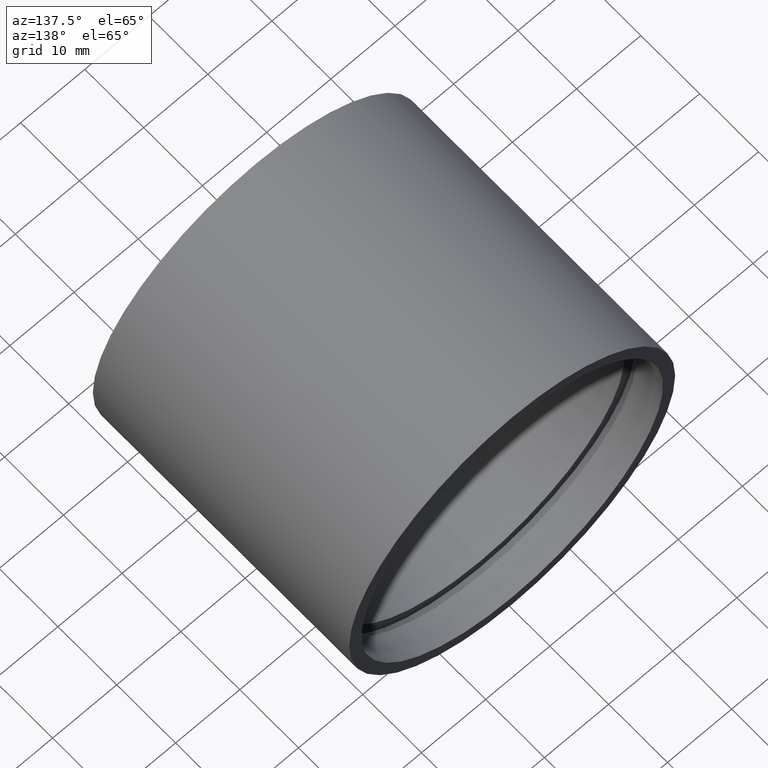
[diagram: clean part render]
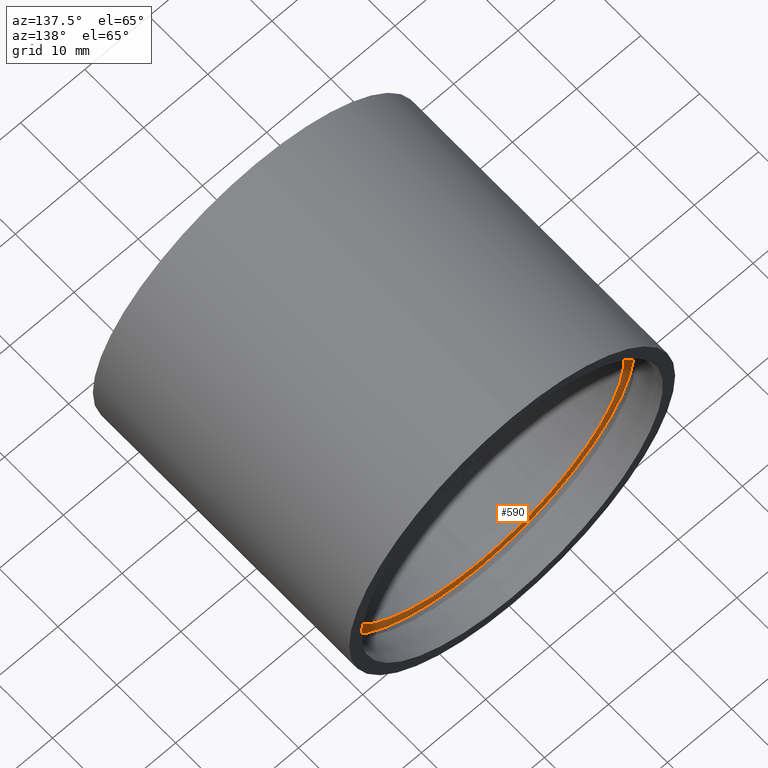
[diagram: same view with one face highlighted and labeled with its STEP entity id]
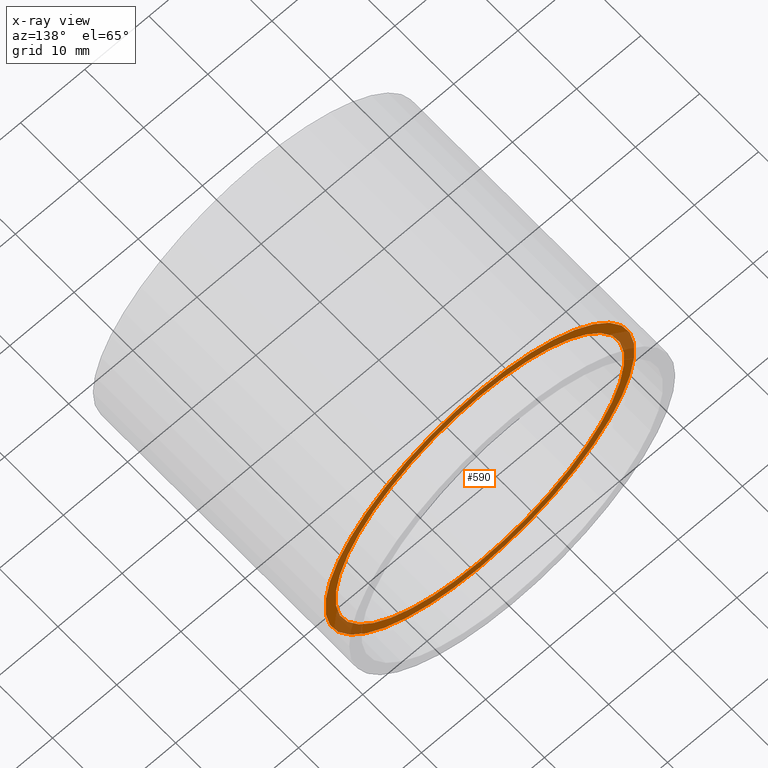
[diagram: x-ray of the same camera — body ghosted, the highlighted face saturated]
A machine part, auxiliary view. The second image highlights one B-rep face of the part: STEP entity #590.
The next image is the same camera in x-ray: the body ghosted, the highlighted face saturated — about 13% of this face is hidden behind the body in this view.
In plain terms, the highlighted planar face has unit normal (0, -1, 0).
Its self-contained STEP definition (entity closure, byte-faithful):
#33 = DIRECTION ( 'NONE',  ( 0.0000000000000000000, 0.0000000000000000000, 1.000000000000000000 ) ) ;
#58 = CARTESIAN_POINT ( 'NONE',  ( 2.951398785945125600E-015, 38.09999999999998000, -24.10000000000003300 ) ) ;
#72 = EDGE_CURVE ( 'NONE', #587, #80, #249, .T. ) ;
#80 = VERTEX_POINT ( 'NONE', #215 ) ;
#82 = CARTESIAN_POINT ( 'NONE',  ( 2.755455298081546700E-015, 38.09999999999998000, -22.50000000000001800 ) ) ;
#88 = AXIS2_PLACEMENT_3D ( 'NONE', #450, #444, #177 ) ;
#123 = CIRCLE ( 'NONE', #88, 22.50000000000001800 ) ;
#129 = DIRECTION ( 'NONE',  ( 0.0000000000000000000, 0.0000000000000000000, 1.000000000000000000 ) ) ;
#142 = CARTESIAN_POINT ( 'NONE',  ( 0.0000000000000000000, 38.09999999999998000, 0.0000000000000000000 ) ) ;
#143 = ORIENTED_EDGE ( 'NONE', *, *, #580, .F. ) ;
#152 = CIRCLE ( 'NONE', #418, 24.10000000000003300 ) ;
#162 = VERTEX_POINT ( 'NONE', #369 ) ;
#177 = DIRECTION ( 'NONE',  ( 0.0000000000000000000, 0.0000000000000000000, 1.000000000000000000 ) ) ;
#199 = ORIENTED_EDGE ( 'NONE', *, *, #72, .F. ) ;
#211 = DIRECTION ( 'NONE',  ( -0.0000000000000000000, 1.000000000000000000, -0.0000000000000000000 ) ) ;
#215 = CARTESIAN_POINT ( 'NONE',  ( 0.0000000000000000000, 38.09999999999998000, 22.50000000000001800 ) ) ;
#223 = FACE_OUTER_BOUND ( 'NONE', #401, .T. ) ;
#249 = CIRCLE ( 'NONE', #284, 22.50000000000001800 ) ;
#257 = CARTESIAN_POINT ( 'NONE',  ( 0.0000000000000000000, 38.09999999999998000, 0.0000000000000000000 ) ) ;
#284 = AXIS2_PLACEMENT_3D ( 'NONE', #257, #408, #129 ) ;
#294 = CARTESIAN_POINT ( 'NONE',  ( 0.0000000000000000000, 38.09999999999998000, 0.0000000000000000000 ) ) ;
#296 = VERTEX_POINT ( 'NONE', #58 ) ;
#350 = DIRECTION ( 'NONE',  ( 0.0000000000000000000, -1.000000000000000000, 0.0000000000000000000 ) ) ;
#353 = DIRECTION ( 'NONE',  ( -0.0000000000000000000, 1.000000000000000000, -0.0000000000000000000 ) ) ;
#369 = CARTESIAN_POINT ( 'NONE',  ( 0.0000000000000000000, 38.09999999999998000, 24.10000000000003300 ) ) ;
#378 = EDGE_LOOP ( 'NONE', ( #143, #199 ) ) ;
#383 = AXIS2_PLACEMENT_3D ( 'NONE', #294, #211, #33 ) ;
#395 = CIRCLE ( 'NONE', #383, 24.10000000000003300 ) ;
#401 = EDGE_LOOP ( 'NONE', ( #514, #439 ) ) ;
#407 = EDGE_CURVE ( 'NONE', #162, #296, #395, .T. ) ;
#408 = DIRECTION ( 'NONE',  ( -0.0000000000000000000, 1.000000000000000000, -0.0000000000000000000 ) ) ;
#418 = AXIS2_PLACEMENT_3D ( 'NONE', #142, #353, #456 ) ;
#439 = ORIENTED_EDGE ( 'NONE', *, *, #605, .T. ) ;
#444 = DIRECTION ( 'NONE',  ( -0.0000000000000000000, 1.000000000000000000, -0.0000000000000000000 ) ) ;
#447 = CARTESIAN_POINT ( 'NONE',  ( 22.50000000000001800, 38.09999999999998000, 0.0000000000000000000 ) ) ;
#450 = CARTESIAN_POINT ( 'NONE',  ( 0.0000000000000000000, 38.09999999999998000, 0.0000000000000000000 ) ) ;
#456 = DIRECTION ( 'NONE',  ( 0.0000000000000000000, 0.0000000000000000000, 1.000000000000000000 ) ) ;
#501 = DIRECTION ( 'NONE',  ( 0.0000000000000000000, -0.0000000000000000000, -1.000000000000000000 ) ) ;
#514 = ORIENTED_EDGE ( 'NONE', *, *, #407, .T. ) ;
#574 = AXIS2_PLACEMENT_3D ( 'NONE', #447, #350, #501 ) ;
#580 = EDGE_CURVE ( 'NONE', #80, #587, #123, .T. ) ;
#587 = VERTEX_POINT ( 'NONE', #82 ) ;
#590 = ADVANCED_FACE ( 'NONE', ( #592, #223 ), #620, .F. ) ;
#592 = FACE_BOUND ( 'NONE', #378, .T. ) ;
#605 = EDGE_CURVE ( 'NONE', #296, #162, #152, .T. ) ;
#620 = PLANE ( 'NONE',  #574 ) ;